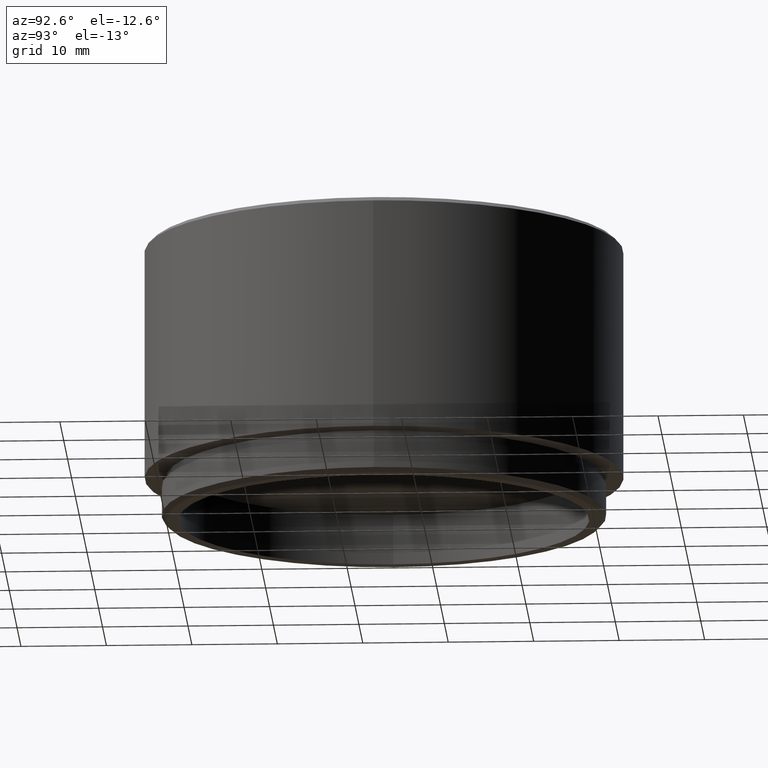
[diagram: clean part render]
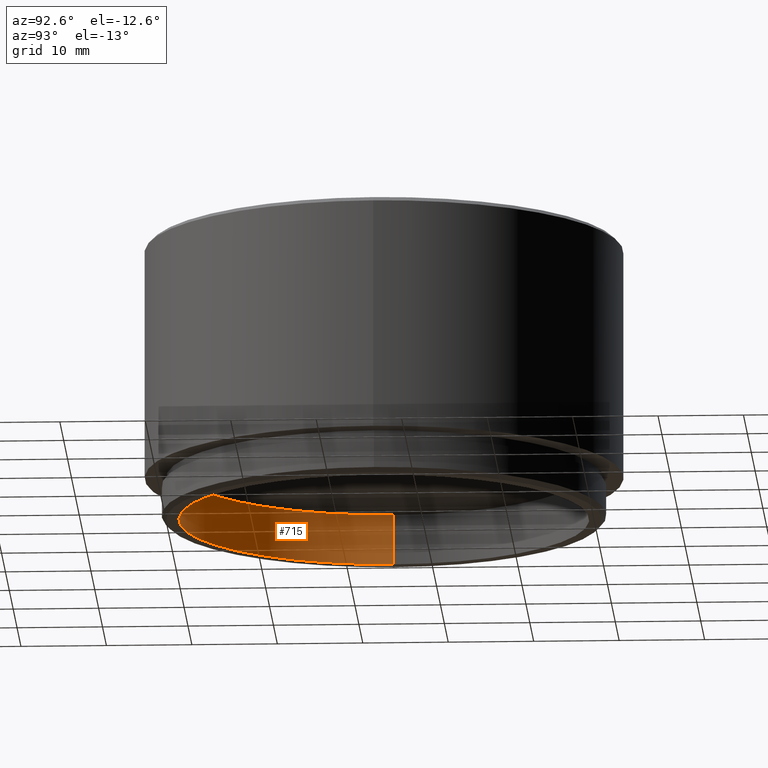
[diagram: same view with one face highlighted and labeled with its STEP entity id]
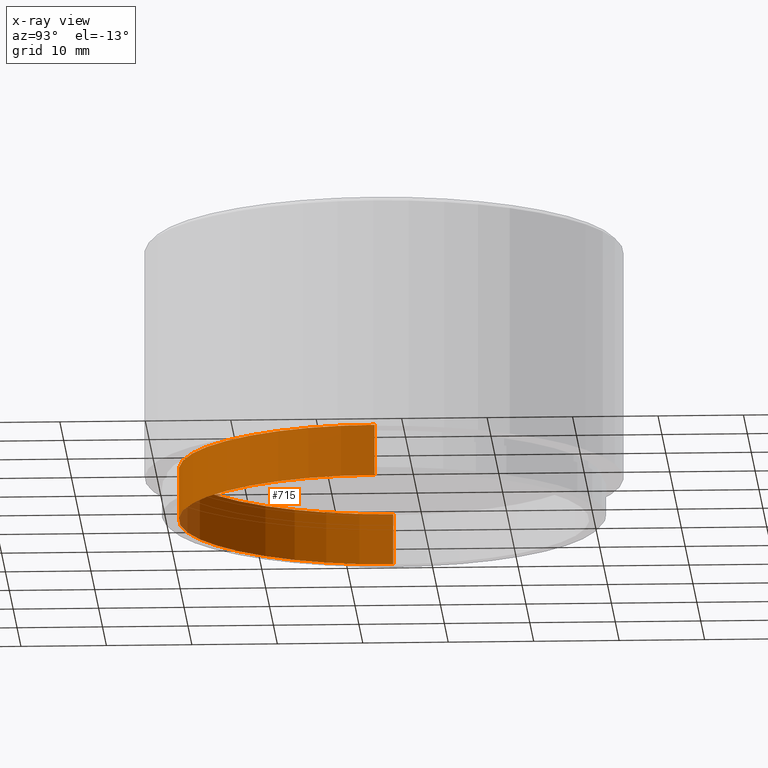
[diagram: x-ray of the same camera — body ghosted, the highlighted face saturated]
A machine part, auxiliary view. The second image highlights one B-rep face of the part: STEP entity #715.
The next image is the same camera in x-ray: the body ghosted, the highlighted face saturated — about 0% of this face is hidden behind the body in this view.
In plain terms, the highlighted cylindrical surface (partial cylindrical patch) has radius 24 mm, axis along (-0, -0, -1).
Its self-contained STEP definition (entity closure, byte-faithful):
#41 = EDGE_CURVE ( 'NONE', #315, #1233, #92, .T. ) ;
#71 = AXIS2_PLACEMENT_3D ( 'NONE', #579, #585, #1382 ) ;
#92 = LINE ( 'NONE', #1718, #1050 ) ;
#95 = CARTESIAN_POINT ( 'NONE',  ( 0.000000000000000000, 0.000000000000000000, 32.50000000000000000 ) ) ;
#104 = DIRECTION ( 'NONE',  ( -0.000000000000000000, -0.000000000000000000, -1.000000000000000000 ) ) ;
#186 = CARTESIAN_POINT ( 'NONE',  ( 24.00000000000000355, 2.939152317953648289E-15, 0.000000000000000000 ) ) ;
#192 = ORIENTED_EDGE ( 'NONE', *, *, #41, .T. ) ;
#206 = ORIENTED_EDGE ( 'NONE', *, *, #1132, .T. ) ;
#220 = ORIENTED_EDGE ( 'NONE', *, *, #1030, .F. ) ;
#224 = DIRECTION ( 'NONE',  ( 0.000000000000000000, 0.000000000000000000, 1.000000000000000000 ) ) ;
#245 = VECTOR ( 'NONE', #1269, 1000.000000000000000 ) ;
#287 = CARTESIAN_POINT ( 'NONE',  ( 24.00000000000000355, 2.939152317953648289E-15, 6.000000000000001776 ) ) ;
#292 = CIRCLE ( 'NONE', #71, 24.00000000000000355 ) ;
#315 = VERTEX_POINT ( 'NONE', #287 ) ;
#373 = CIRCLE ( 'NONE', #812, 24.00000000000000355 ) ;
#509 = FACE_OUTER_BOUND ( 'NONE', #931, .T. ) ;
#579 = CARTESIAN_POINT ( 'NONE',  ( 0.000000000000000000, 0.000000000000000000, 6.000000000000001776 ) ) ;
#585 = DIRECTION ( 'NONE',  ( 0.000000000000000000, 0.000000000000000000, 1.000000000000000000 ) ) ;
#602 = CARTESIAN_POINT ( 'NONE',  ( -24.00000000000000355, 0.000000000000000000, 32.50000000000000000 ) ) ;
#614 = LINE ( 'NONE', #602, #245 ) ;
#715 = ADVANCED_FACE ( 'NONE', ( #509 ), #929, .F. ) ;
#812 = AXIS2_PLACEMENT_3D ( 'NONE', #888, #224, #1717 ) ;
#826 = AXIS2_PLACEMENT_3D ( 'NONE', #95, #1564, #1472 ) ;
#888 = CARTESIAN_POINT ( 'NONE',  ( 0.000000000000000000, 0.000000000000000000, 0.000000000000000000 ) ) ;
#905 = VERTEX_POINT ( 'NONE', #1119 ) ;
#929 = CYLINDRICAL_SURFACE ( 'NONE', #826, 24.00000000000000355 ) ;
#931 = EDGE_LOOP ( 'NONE', ( #206, #192, #220, #1190 ) ) ;
#1030 = EDGE_CURVE ( 'NONE', #1162, #1233, #373, .T. ) ;
#1050 = VECTOR ( 'NONE', #104, 1000.000000000000000 ) ;
#1119 = CARTESIAN_POINT ( 'NONE',  ( -24.00000000000000355, 0.000000000000000000, 6.000000000000001776 ) ) ;
#1132 = EDGE_CURVE ( 'NONE', #905, #315, #292, .T. ) ;
#1162 = VERTEX_POINT ( 'NONE', #1365 ) ;
#1190 = ORIENTED_EDGE ( 'NONE', *, *, #1616, .F. ) ;
#1233 = VERTEX_POINT ( 'NONE', #186 ) ;
#1269 = DIRECTION ( 'NONE',  ( -0.000000000000000000, -0.000000000000000000, -1.000000000000000000 ) ) ;
#1365 = CARTESIAN_POINT ( 'NONE',  ( -24.00000000000000355, 0.000000000000000000, 0.000000000000000000 ) ) ;
#1382 = DIRECTION ( 'NONE',  ( 1.000000000000000000, 0.000000000000000000, 0.000000000000000000 ) ) ;
#1472 = DIRECTION ( 'NONE',  ( -1.000000000000000000, 0.000000000000000000, 0.000000000000000000 ) ) ;
#1564 = DIRECTION ( 'NONE',  ( -0.000000000000000000, -0.000000000000000000, -1.000000000000000000 ) ) ;
#1616 = EDGE_CURVE ( 'NONE', #905, #1162, #614, .T. ) ;
#1717 = DIRECTION ( 'NONE',  ( 1.000000000000000000, 0.000000000000000000, 0.000000000000000000 ) ) ;
#1718 = CARTESIAN_POINT ( 'NONE',  ( 24.00000000000000355, 2.939152317953648289E-15, 32.50000000000000000 ) ) ;